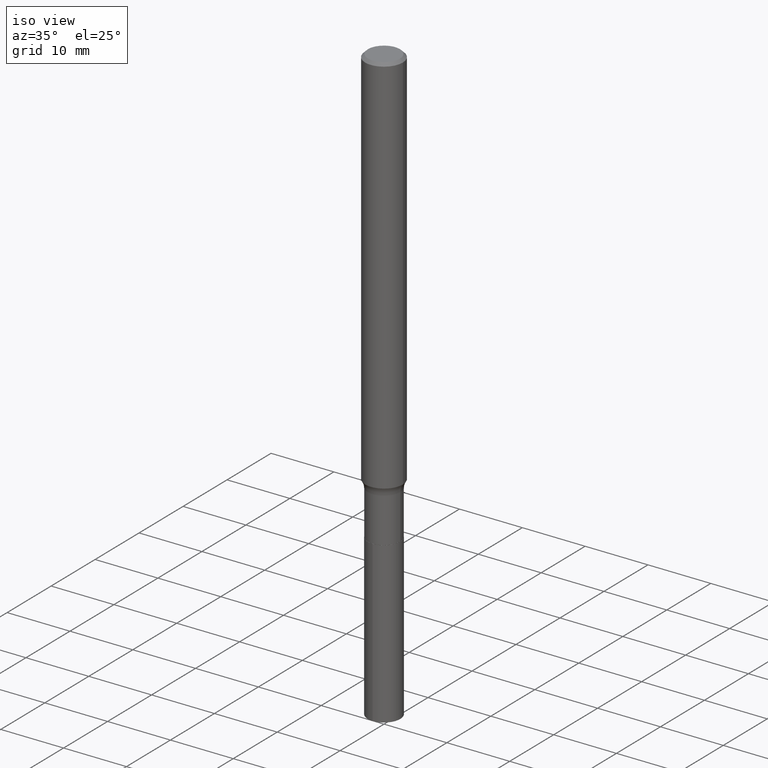
[diagram: clean part render]
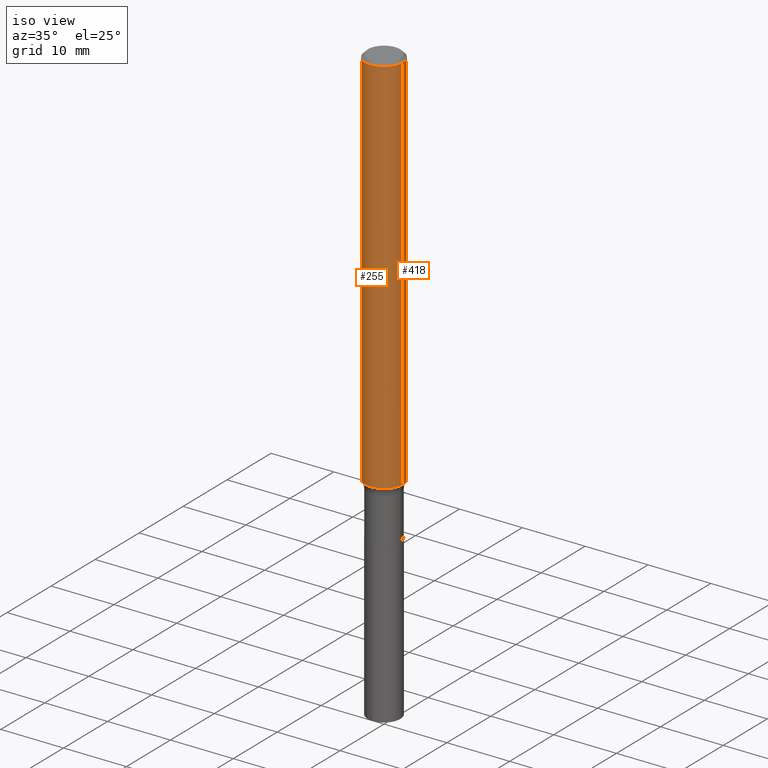
[diagram: same view with one multi-face feature highlighted, each face labeled with its STEP entity id]
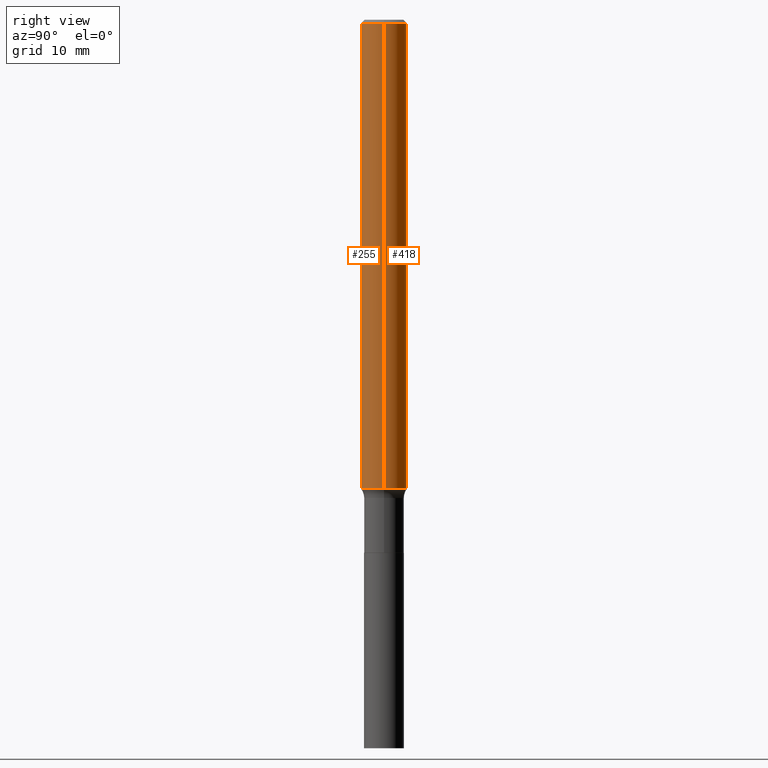
[diagram: same view with one multi-face feature highlighted, each face labeled with its STEP entity id]
A machine part, iso view. The highlighted faces form ONE feature: a constant-radius fillet chain: 2 tangent blend faces with common blend radius 2.9997 mm. The faces share edges in the B-rep.
A second angle (right view) of the same feature is appended — it is thin or edge-on in the first view.
Their STEP definitions:
[1] entity #418 (Cylinder):
#7 = CARTESIAN_POINT ( 'NONE',  ( -0.1181000000000001632, 8.391509709326794790E-16, -5.809262341591051491E-30 ) ) ;
#29 = CARTESIAN_POINT ( 'NONE',  ( 0.000000000000000000, 0.000000000000000000, 0.000000000000000000 ) ) ;
#70 = CARTESIAN_POINT ( 'NONE',  ( -0.1180999999999999966, -3.395230579436365239E-15, -0.01771500000000010219 ) ) ;
#73 = EDGE_CURVE ( 'NONE', #396, #403, #189, .T. ) ;
#93 = CARTESIAN_POINT ( 'NONE',  ( 5.888285760676931811E-29, -8.406911508820488562E-15, -2.407835154463693339 ) ) ;
#96 = DIRECTION ( 'NONE',  ( -2.445468806185136877E-29, 3.491481338843145188E-15, 1.000000000000000000 ) ) ;
#108 = AXIS2_PLACEMENT_3D ( 'NONE', #441, #468, #295 ) ;
#110 = CYLINDRICAL_SURFACE ( 'NONE', #349, 0.1181000000000001632 ) ;
#130 = EDGE_CURVE ( 'NONE', #307, #227, #416, .T. ) ;
#138 = CARTESIAN_POINT ( 'NONE',  ( 0.1181000000000001632, -8.246878922347493473E-16, 5.758764772215008848E-30 ) ) ;
#179 = DIRECTION ( 'NONE',  ( -2.445468806185136597E-29, 3.491481338843145583E-15, 1.000000000000000000 ) ) ;
#189 = LINE ( 'NONE', #7, #351 ) ;
#198 = ORIENTED_EDGE ( 'NONE', *, *, #445, .F. ) ;
#199 = AXIS2_PLACEMENT_3D ( 'NONE', #93, #280, #376 ) ;
#227 = VERTEX_POINT ( 'NONE', #237 ) ;
#237 = CARTESIAN_POINT ( 'NONE',  ( 0.1180999999999999966, -8.865394841523547570E-16, -0.01771500000000010219 ) ) ;
#239 = EDGE_CURVE ( 'NONE', #307, #396, #395, .T. ) ;
#248 = CARTESIAN_POINT ( 'NONE',  ( -0.1181000000000003436, -7.567760537887806421E-15, -2.407835154463693339 ) ) ;
#269 = EDGE_LOOP ( 'NONE', ( #301, #443, #198, #446 ) ) ;
#280 = DIRECTION ( 'NONE',  ( -2.445468806185136597E-29, 3.491481338843145583E-15, 1.000000000000000000 ) ) ;
#295 = DIRECTION ( 'NONE',  ( 1.000000000000000000, -6.982962677686266711E-15, 0.000000000000000000 ) ) ;
#300 = DIRECTION ( 'NONE',  ( -2.445468806185136877E-29, 3.491481338843145188E-15, 1.000000000000000000 ) ) ;
#301 = ORIENTED_EDGE ( 'NONE', *, *, #239, .T. ) ;
#307 = VERTEX_POINT ( 'NONE', #347 ) ;
#320 = DIRECTION ( 'NONE',  ( 1.000000000000000000, -6.982962677686267499E-15, 4.876176775795936353E-29 ) ) ;
#347 = CARTESIAN_POINT ( 'NONE',  ( 0.1181000000000003436, -9.231599401055238402E-15, -2.407835154463693339 ) ) ;
#349 = AXIS2_PLACEMENT_3D ( 'NONE', #29, #179, #320 ) ;
#351 = VECTOR ( 'NONE', #300, 39.37007874015748143 ) ;
#352 = FACE_OUTER_BOUND ( 'NONE', #269, .T. ) ;
#376 = DIRECTION ( 'NONE',  ( 1.000000000000000000, -6.982962677686261977E-15, 0.000000000000000000 ) ) ;
#384 = VECTOR ( 'NONE', #96, 39.37007874015748143 ) ;
#395 = CIRCLE ( 'NONE', #199, 0.1181000000000003158 ) ;
#396 = VERTEX_POINT ( 'NONE', #248 ) ;
#403 = VERTEX_POINT ( 'NONE', #70 ) ;
#416 = LINE ( 'NONE', #138, #384 ) ;
#418 = ADVANCED_FACE ( 'NONE', ( #352 ), #110, .T. ) ;
#429 = CIRCLE ( 'NONE', #108, 0.1180999999999999966 ) ;
#441 = CARTESIAN_POINT ( 'NONE',  ( 4.332147990156994992E-31, -6.185159191760669162E-17, -0.01771500000000010219 ) ) ;
#443 = ORIENTED_EDGE ( 'NONE', *, *, #73, .T. ) ;
#445 = EDGE_CURVE ( 'NONE', #227, #403, #429, .T. ) ;
#446 = ORIENTED_EDGE ( 'NONE', *, *, #130, .F. ) ;
#468 = DIRECTION ( 'NONE',  ( -2.445468806185136597E-29, 3.491481338843145583E-15, 1.000000000000000000 ) ) ;
[2] entity #255 (Cylinder):
#7 = CARTESIAN_POINT ( 'NONE',  ( -0.1181000000000001632, 8.391509709326794790E-16, -5.809262341591051491E-30 ) ) ;
#14 = AXIS2_PLACEMENT_3D ( 'NONE', #129, #162, #308 ) ;
#27 = CYLINDRICAL_SURFACE ( 'NONE', #84, 0.1181000000000001632 ) ;
#34 = DIRECTION ( 'NONE',  ( 1.000000000000000000, -6.982962677686261977E-15, 0.000000000000000000 ) ) ;
#45 = CIRCLE ( 'NONE', #171, 0.1181000000000003158 ) ;
#62 = ORIENTED_EDGE ( 'NONE', *, *, #130, .T. ) ;
#69 = DIRECTION ( 'NONE',  ( 1.000000000000000000, -6.982962677686267499E-15, 4.876176775795936353E-29 ) ) ;
#70 = CARTESIAN_POINT ( 'NONE',  ( -0.1180999999999999966, -3.395230579436365239E-15, -0.01771500000000010219 ) ) ;
#71 = ORIENTED_EDGE ( 'NONE', *, *, #294, .T. ) ;
#73 = EDGE_CURVE ( 'NONE', #396, #403, #189, .T. ) ;
#84 = AXIS2_PLACEMENT_3D ( 'NONE', #257, #428, #69 ) ;
#96 = DIRECTION ( 'NONE',  ( -2.445468806185136877E-29, 3.491481338843145188E-15, 1.000000000000000000 ) ) ;
#129 = CARTESIAN_POINT ( 'NONE',  ( 4.332147990156994992E-31, -6.185159191760669162E-17, -0.01771500000000010219 ) ) ;
#130 = EDGE_CURVE ( 'NONE', #307, #227, #416, .T. ) ;
#138 = CARTESIAN_POINT ( 'NONE',  ( 0.1181000000000001632, -8.246878922347493473E-16, 5.758764772215008848E-30 ) ) ;
#150 = EDGE_LOOP ( 'NONE', ( #251, #71, #62, #266 ) ) ;
#162 = DIRECTION ( 'NONE',  ( -2.445468806185136597E-29, 3.491481338843145583E-15, 1.000000000000000000 ) ) ;
#171 = AXIS2_PLACEMENT_3D ( 'NONE', #423, #432, #34 ) ;
#189 = LINE ( 'NONE', #7, #351 ) ;
#204 = FACE_OUTER_BOUND ( 'NONE', #150, .T. ) ;
#227 = VERTEX_POINT ( 'NONE', #237 ) ;
#233 = EDGE_CURVE ( 'NONE', #403, #227, #389, .T. ) ;
#237 = CARTESIAN_POINT ( 'NONE',  ( 0.1180999999999999966, -8.865394841523547570E-16, -0.01771500000000010219 ) ) ;
#248 = CARTESIAN_POINT ( 'NONE',  ( -0.1181000000000003436, -7.567760537887806421E-15, -2.407835154463693339 ) ) ;
#251 = ORIENTED_EDGE ( 'NONE', *, *, #73, .F. ) ;
#255 = ADVANCED_FACE ( 'NONE', ( #204 ), #27, .T. ) ;
#257 = CARTESIAN_POINT ( 'NONE',  ( 0.000000000000000000, 0.000000000000000000, 0.000000000000000000 ) ) ;
#266 = ORIENTED_EDGE ( 'NONE', *, *, #233, .F. ) ;
#294 = EDGE_CURVE ( 'NONE', #396, #307, #45, .T. ) ;
#300 = DIRECTION ( 'NONE',  ( -2.445468806185136877E-29, 3.491481338843145188E-15, 1.000000000000000000 ) ) ;
#307 = VERTEX_POINT ( 'NONE', #347 ) ;
#308 = DIRECTION ( 'NONE',  ( 1.000000000000000000, -6.982962677686266711E-15, 0.000000000000000000 ) ) ;
#347 = CARTESIAN_POINT ( 'NONE',  ( 0.1181000000000003436, -9.231599401055238402E-15, -2.407835154463693339 ) ) ;
#351 = VECTOR ( 'NONE', #300, 39.37007874015748143 ) ;
#384 = VECTOR ( 'NONE', #96, 39.37007874015748143 ) ;
#389 = CIRCLE ( 'NONE', #14, 0.1180999999999999966 ) ;
#396 = VERTEX_POINT ( 'NONE', #248 ) ;
#403 = VERTEX_POINT ( 'NONE', #70 ) ;
#416 = LINE ( 'NONE', #138, #384 ) ;
#423 = CARTESIAN_POINT ( 'NONE',  ( 5.888285760676931811E-29, -8.406911508820488562E-15, -2.407835154463693339 ) ) ;
#428 = DIRECTION ( 'NONE',  ( -2.445468806185136597E-29, 3.491481338843145583E-15, 1.000000000000000000 ) ) ;
#432 = DIRECTION ( 'NONE',  ( -2.445468806185136597E-29, 3.491481338843145583E-15, 1.000000000000000000 ) ) ;